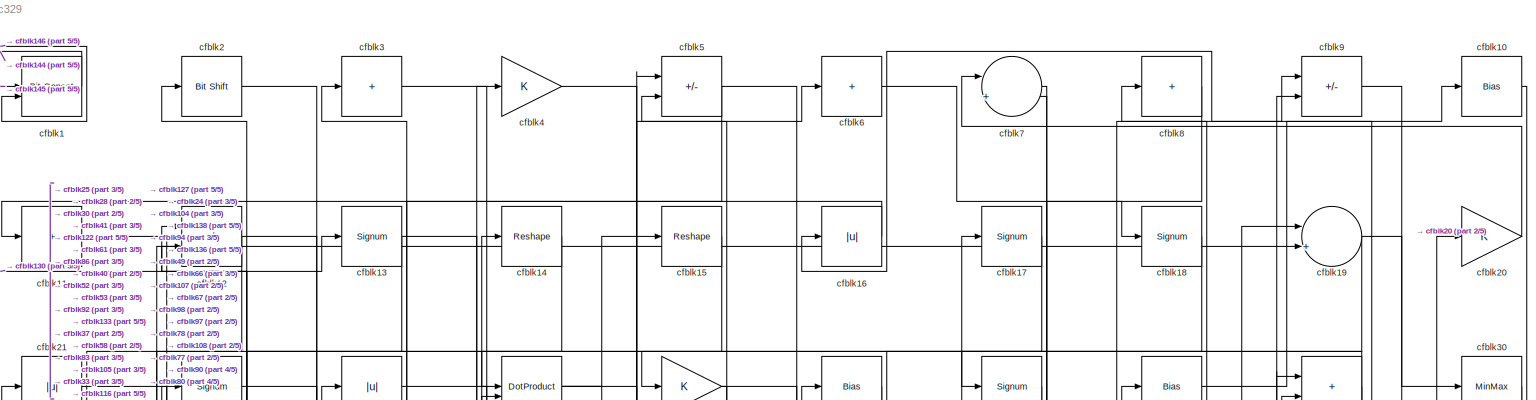
[diagram: root canvas - part 1/5, full width, top band]
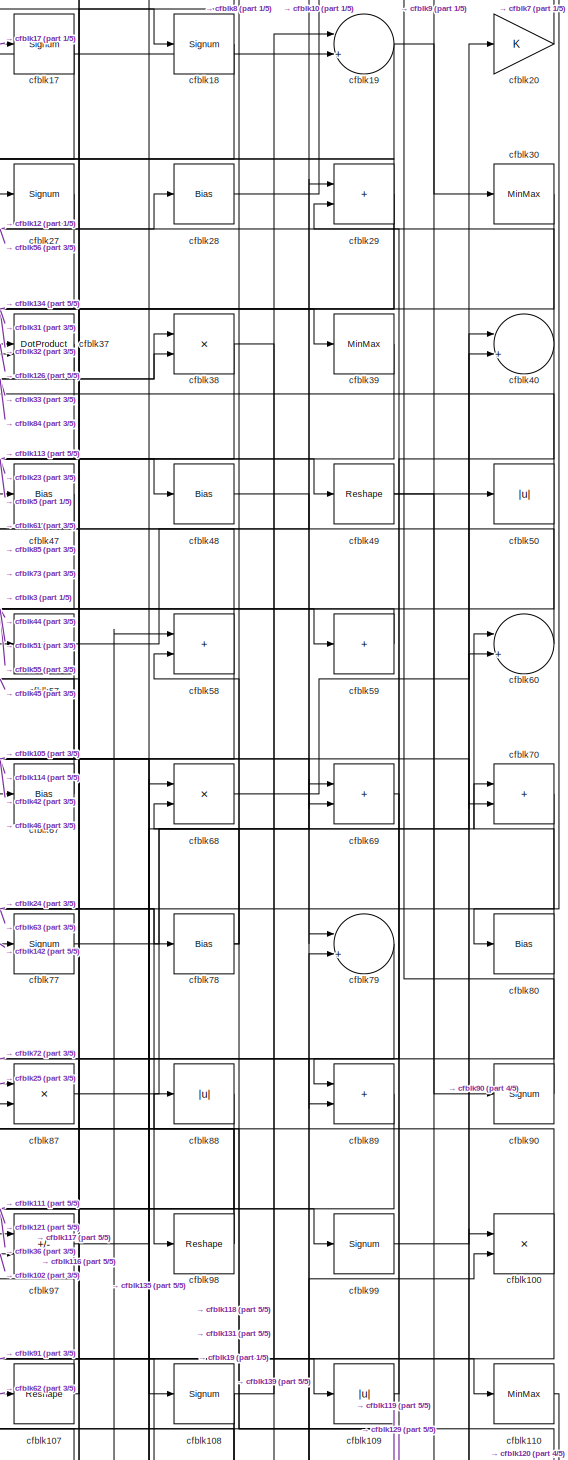
[diagram: root canvas - part 2/5, middle right region]
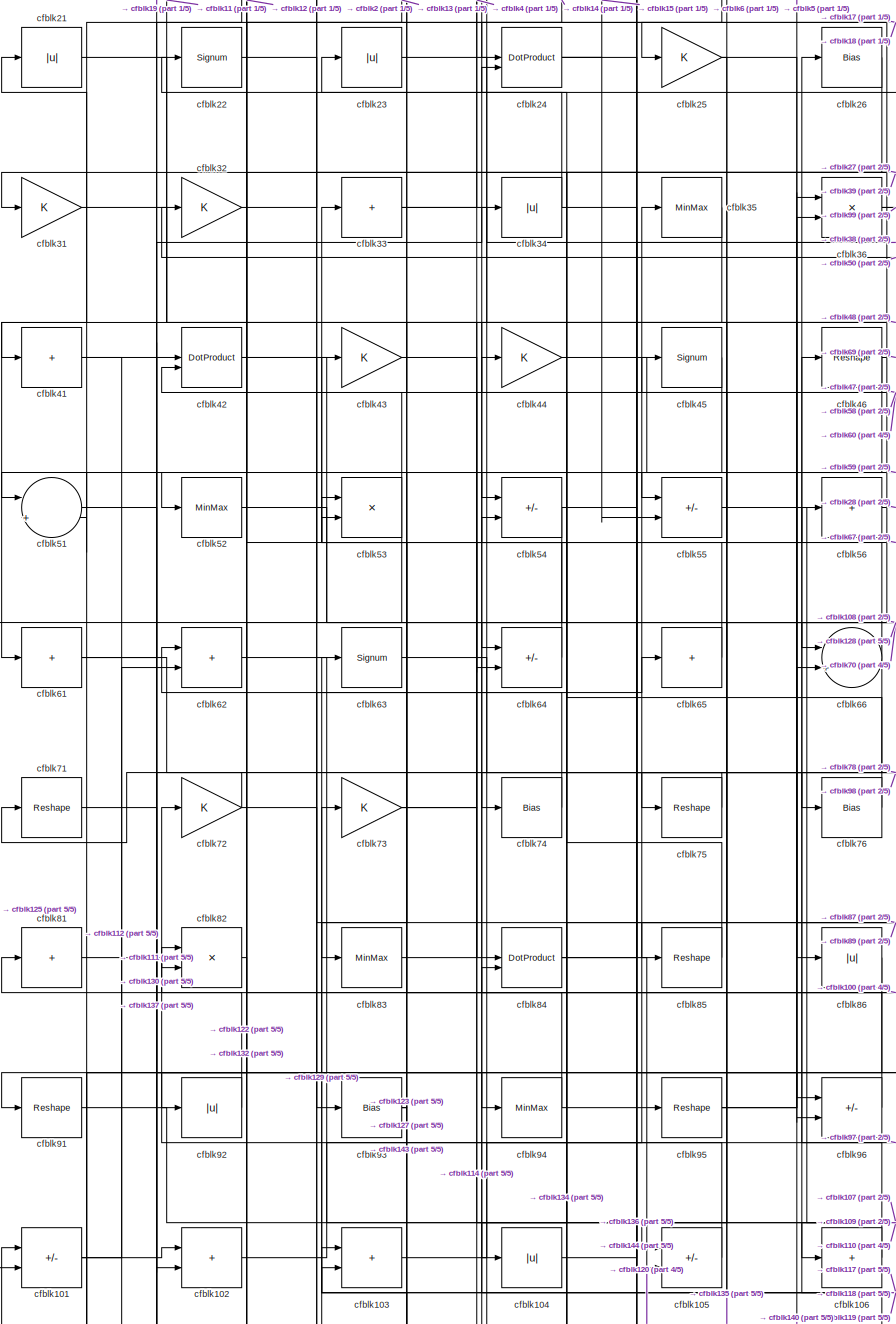
[diagram: root canvas - part 3/5, middle left region]
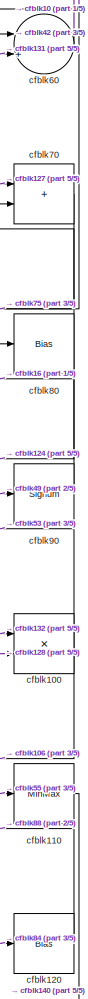
[diagram: root canvas - part 4/5, middle right region]
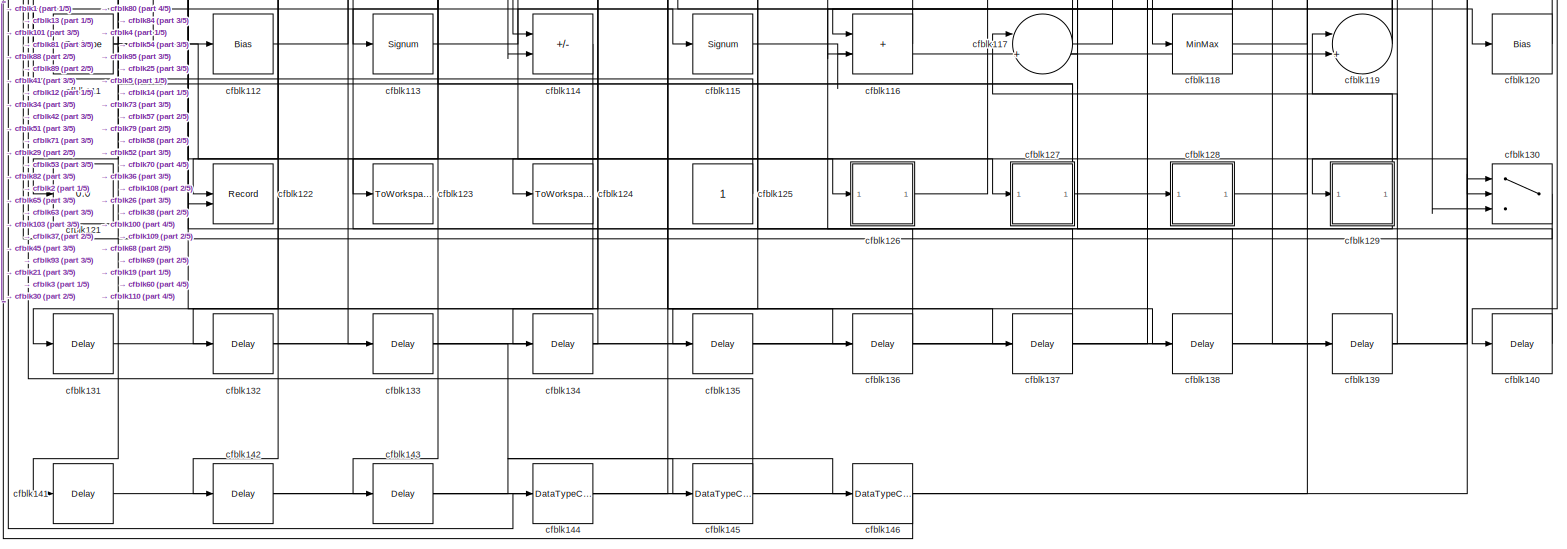
[diagram: root canvas - part 5/5, full width, bottom band]
MODEL slx_9a49e3afc329
KIND model
CONFIG AbsTol = auto
CONFIG EnableMultiTasking = off
CONFIG FixedStep = auto
CONFIG MaxStep = auto
CONFIG MinStep = auto
CONFIG RelTol = 1e-3
CONFIG SampleTimeConstraint = Unconstrained
CONFIG SolverName = VariableStepAuto
CONFIG StartTime = 0.0
CONFIG StopTime = 10.0
BLOCK [Reference] cfblk1  REF=hdlsllib/Logic and Bit
Operations/Bit Concat
  SourceBlock = hdlsllib/Logic and Bit\nOperations/Bit Concat
  SourceType = Bit Concat
BLOCK [Bias] cfblk10
  Bias = 0.0
  SaturateOnIntegerOverflow = off
BLOCK [Product] cfblk100
  Inputs = */
  RndMeth = Zero
  SaturateOnIntegerOverflow = on
BLOCK [Sum] cfblk101
  IconShape = rectangular
  Inputs = +-
BLOCK [Sum] cfblk102
  IconShape = rectangular
BLOCK [Sum] cfblk103
  IconShape = rectangular
BLOCK [Abs] cfblk104
  SaturateOnIntegerOverflow = off
BLOCK [Sum] cfblk105
  IconShape = rectangular
  Inputs = +-
BLOCK [Sum] cfblk106
  IconShape = rectangular
  Inputs = +
BLOCK [Reshape] cfblk107
BLOCK [Signum] cfblk108
BLOCK [Abs] cfblk109
  SaturateOnIntegerOverflow = off
BLOCK [Sum] cfblk11
  IconShape = rectangular
  Inputs = +
BLOCK [MinMax] cfblk110
BLOCK [Reshape] cfblk111
BLOCK [Bias] cfblk112
  Bias = 0.0
  SaturateOnIntegerOverflow = off
BLOCK [Signum] cfblk113
BLOCK [Sum] cfblk114
  IconShape = rectangular
  Inputs = +-
BLOCK [Signum] cfblk115
BLOCK [Sum] cfblk116
  IconShape = rectangular
BLOCK [Sum] cfblk117
  Inputs = |++
BLOCK [MinMax] cfblk118
BLOCK [Sum] cfblk119
  Inputs = |++
BLOCK [Sum] cfblk12
  IconShape = rectangular
  Inputs = +-
BLOCK [Bias] cfblk120
  Bias = 0.0
  SaturateOnIntegerOverflow = off
BLOCK [Display] cfblk121
  Decimation = 1
BLOCK [Record] cfblk122
  CompatibilityTag = XY
  FileSettingsInternal = {"entries":[{"content":{"excelSettings":{"content":{},"type":"Streamout.ExcelSettings"}},"type":"Streamout.FileSettingStorage","uuid":""}],"packageUris":["http:\/\/schema.mathworks.com\/mf0\/streamout_blocks\/R2020a"],"version":"1.0"}
  Layout = [1 1]
  SignalsInternal = {"entries":[{"content":{},"type":"RecordBlkView.InputSignals","uuid":""}],"packageUris":["http:\/\/schema.mathworks.com\/mf0\/streamout_blocks\/R2020a"],"version":"1.0"}
  VisualizationBindings = {"xyplotplugin":{"info":[{"series":[{"bindingParametersList":[{"parameter":"X-Axis","signalID":1531,"signalName":"cfblk82"},{"parameter":"Y-Axis","signalID":1535,"signalName":"cfblk12"}],"seriesID":53253}],"subplotID":1}]}}
  st = -1
BLOCK [ToWorkspace] cfblk123
  MaxDataPoints = inf
  SampleTime = -1
  SaveFormat = Timeseries
  VariableName = simout
BLOCK [ToWorkspace] cfblk124
  MaxDataPoints = inf
  SampleTime = -1
  SaveFormat = Timeseries
  VariableName = simout
BLOCK [Constant] cfblk125
  SampleTime = -1
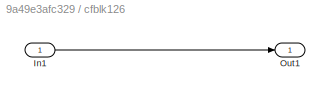
BLOCK [SubSystem] cfblk126
  LibrarySourceBlock = hdlsllib/Ports &\nSubsystems/Subsystem
BLOCK [Inport] cfblk126/In1
BLOCK [Outport] cfblk126/Out1
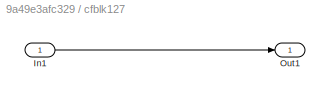
BLOCK [SubSystem] cfblk127
  LibrarySourceBlock = hdlsllib/Ports &\nSubsystems/Subsystem
BLOCK [Inport] cfblk127/In1
BLOCK [Outport] cfblk127/Out1
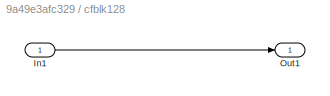
BLOCK [SubSystem] cfblk128
  LibrarySourceBlock = hdlsllib/Ports &\nSubsystems/Subsystem
BLOCK [Inport] cfblk128/In1
BLOCK [Outport] cfblk128/Out1
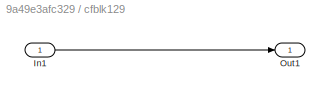
BLOCK [SubSystem] cfblk129
  LibrarySourceBlock = hdlsllib/Ports &\nSubsystems/Subsystem
BLOCK [Inport] cfblk129/In1
BLOCK [Outport] cfblk129/Out1
BLOCK [Signum] cfblk13
BLOCK [Switch] cfblk130
  InputSameDT = off
  SaturateOnIntegerOverflow = off
BLOCK [Delay] cfblk131
  InputPortMap = u0
  SampleTime = 1
BLOCK [Delay] cfblk132
  InputPortMap = u0
  SampleTime = 1
BLOCK [Delay] cfblk133
  InputPortMap = u0
  SampleTime = 1
BLOCK [Delay] cfblk134
  InputPortMap = u0
  SampleTime = 1
BLOCK [Delay] cfblk135
  InputPortMap = u0
  SampleTime = 1
BLOCK [Delay] cfblk136
  InputPortMap = u0
  SampleTime = 1
BLOCK [Delay] cfblk137
  InputPortMap = u0
  SampleTime = 1
BLOCK [Delay] cfblk138
  InputPortMap = u0
  SampleTime = 1
BLOCK [Delay] cfblk139
  InputPortMap = u0
  SampleTime = 1
BLOCK [Reshape] cfblk14
BLOCK [Delay] cfblk140
  InputPortMap = u0
  SampleTime = 1
BLOCK [Delay] cfblk141
  InputPortMap = u0
  SampleTime = 1
BLOCK [Delay] cfblk142
  InputPortMap = u0
  SampleTime = 1
BLOCK [Delay] cfblk143
  InputPortMap = u0
  SampleTime = 1
BLOCK [DataTypeConversion] cfblk144
  OutDataTypeStr = uint8
  RndMeth = Floor
  SaturateOnIntegerOverflow = off
BLOCK [DataTypeConversion] cfblk145
  OutDataTypeStr = uint8
  RndMeth = Floor
  SaturateOnIntegerOverflow = off
BLOCK [DataTypeConversion] cfblk146
  OutDataTypeStr = uint8
  RndMeth = Floor
  SaturateOnIntegerOverflow = off
BLOCK [Reshape] cfblk15
BLOCK [Abs] cfblk16
  SaturateOnIntegerOverflow = off
BLOCK [Signum] cfblk17
BLOCK [Signum] cfblk18
BLOCK [Sum] cfblk19
  Inputs = |++
BLOCK [Reference] cfblk2  REF=hdlsllib/Logic and Bit
Operations/Bit Shift
  SourceBlock = hdlsllib/Logic and Bit\nOperations/Bit Shift
  SourceType = Bit Shift
BLOCK [Gain] cfblk20
BLOCK [Abs] cfblk21
  SaturateOnIntegerOverflow = off
BLOCK [Signum] cfblk22
BLOCK [Abs] cfblk23
  SaturateOnIntegerOverflow = off
BLOCK [DotProduct] cfblk24
  OutDataTypeStr = Inherit: Inherit via internal rule
BLOCK [Gain] cfblk25
BLOCK [Bias] cfblk26
  Bias = 0.0
  SaturateOnIntegerOverflow = off
BLOCK [Signum] cfblk27
BLOCK [Bias] cfblk28
  Bias = 0.0
  SaturateOnIntegerOverflow = off
BLOCK [Sum] cfblk29
  IconShape = rectangular
BLOCK [Sum] cfblk3
  IconShape = rectangular
  Inputs = +
BLOCK [MinMax] cfblk30
BLOCK [Gain] cfblk31
BLOCK [Gain] cfblk32
BLOCK [Sum] cfblk33
  IconShape = rectangular
  Inputs = +
BLOCK [Abs] cfblk34
  SaturateOnIntegerOverflow = off
BLOCK [MinMax] cfblk35
BLOCK [Product] cfblk36
  Inputs = */
  RndMeth = Zero
  SaturateOnIntegerOverflow = on
BLOCK [DotProduct] cfblk37
  OutDataTypeStr = Inherit: Inherit via internal rule
BLOCK [Product] cfblk38
  Inputs = */
  RndMeth = Zero
  SaturateOnIntegerOverflow = on
BLOCK [MinMax] cfblk39
BLOCK [Gain] cfblk4
BLOCK [Sum] cfblk40
  Inputs = |++
BLOCK [Sum] cfblk41
  IconShape = rectangular
  Inputs = +
BLOCK [DotProduct] cfblk42
  OutDataTypeStr = Inherit: Inherit via internal rule
BLOCK [Gain] cfblk43
BLOCK [Gain] cfblk44
BLOCK [Signum] cfblk45
BLOCK [Reshape] cfblk46
BLOCK [Bias] cfblk47
  Bias = 0.0
  SaturateOnIntegerOverflow = off
BLOCK [Bias] cfblk48
  Bias = 0.0
  SaturateOnIntegerOverflow = off
BLOCK [Reshape] cfblk49
BLOCK [Sum] cfblk5
  IconShape = rectangular
  Inputs = +-
BLOCK [Abs] cfblk50
  SaturateOnIntegerOverflow = off
BLOCK [Sum] cfblk51
  Inputs = |++
BLOCK [MinMax] cfblk52
BLOCK [Product] cfblk53
  Inputs = */
  RndMeth = Zero
  SaturateOnIntegerOverflow = on
BLOCK [Sum] cfblk54
  IconShape = rectangular
  Inputs = +-
BLOCK [Sum] cfblk55
  IconShape = rectangular
  Inputs = +-
BLOCK [Sum] cfblk56
  IconShape = rectangular
  Inputs = +
BLOCK [Sum] cfblk57
  IconShape = rectangular
  Inputs = +
BLOCK [Sum] cfblk58
  IconShape = rectangular
BLOCK [Sum] cfblk59
  IconShape = rectangular
  Inputs = +
BLOCK [Sum] cfblk6
  IconShape = rectangular
  Inputs = +
BLOCK [Sum] cfblk60
  Inputs = |++
BLOCK [Sum] cfblk61
  IconShape = rectangular
  Inputs = +
BLOCK [Sum] cfblk62
  IconShape = rectangular
BLOCK [Signum] cfblk63
BLOCK [Sum] cfblk64
  IconShape = rectangular
  Inputs = +-
BLOCK [Sum] cfblk65
  IconShape = rectangular
  Inputs = +
BLOCK [Sum] cfblk66
  Inputs = |++
BLOCK [Bias] cfblk67
  Bias = 0.0
  SaturateOnIntegerOverflow = off
BLOCK [Product] cfblk68
  Inputs = */
  RndMeth = Zero
  SaturateOnIntegerOverflow = on
BLOCK [Sum] cfblk69
  IconShape = rectangular
BLOCK [Sum] cfblk7
  Inputs = |++
BLOCK [Sum] cfblk70
  IconShape = rectangular
BLOCK [Reshape] cfblk71
BLOCK [Gain] cfblk72
BLOCK [Gain] cfblk73
BLOCK [Bias] cfblk74
  Bias = 0.0
  SaturateOnIntegerOverflow = off
BLOCK [Reshape] cfblk75
BLOCK [Bias] cfblk76
  Bias = 0.0
  SaturateOnIntegerOverflow = off
BLOCK [Signum] cfblk77
BLOCK [Bias] cfblk78
  Bias = 0.0
  SaturateOnIntegerOverflow = off
BLOCK [Sum] cfblk79
  Inputs = |++
BLOCK [Sum] cfblk8
  IconShape = rectangular
  Inputs = +
BLOCK [Bias] cfblk80
  Bias = 0.0
  SaturateOnIntegerOverflow = off
BLOCK [Sum] cfblk81
  IconShape = rectangular
  Inputs = +
BLOCK [Product] cfblk82
  Inputs = */
  RndMeth = Zero
  SaturateOnIntegerOverflow = on
BLOCK [MinMax] cfblk83
BLOCK [DotProduct] cfblk84
  OutDataTypeStr = Inherit: Inherit via internal rule
BLOCK [Reshape] cfblk85
BLOCK [Abs] cfblk86
  SaturateOnIntegerOverflow = off
BLOCK [Product] cfblk87
  Inputs = */
  RndMeth = Zero
  SaturateOnIntegerOverflow = on
BLOCK [Abs] cfblk88
  SaturateOnIntegerOverflow = off
BLOCK [Sum] cfblk89
  IconShape = rectangular
BLOCK [Sum] cfblk9
  IconShape = rectangular
  Inputs = +-
BLOCK [Signum] cfblk90
BLOCK [Reshape] cfblk91
BLOCK [Abs] cfblk92
  SaturateOnIntegerOverflow = off
BLOCK [Bias] cfblk93
  Bias = 0.0
  SaturateOnIntegerOverflow = off
BLOCK [MinMax] cfblk94
BLOCK [Reshape] cfblk95
BLOCK [Sum] cfblk96
  IconShape = rectangular
  Inputs = +-
BLOCK [Sum] cfblk97
  IconShape = rectangular
  Inputs = +-
BLOCK [Reshape] cfblk98
BLOCK [Signum] cfblk99
NET cfblk100:1 -> cfblk106:1, cfblk53:2
NET cfblk101:1 -> cfblk102:1, cfblk62:2
LINE cfblk102:1 -> cfblk97:2
LINE cfblk103:1 -> cfblk35:1
LINE cfblk104:1 -> cfblk5:1
LINE cfblk105:1 -> cfblk82:1
LINE cfblk106:1 -> cfblk46:1
NET cfblk107:1 -> cfblk17:1, cfblk87:2
NET cfblk108:1 -> cfblk117:2, cfblk131:1, cfblk19:1
NET cfblk109:1 -> cfblk116:2, cfblk29:2
LINE cfblk10:1 -> cfblk80:1
LINE cfblk110:1 -> cfblk140:1
NET cfblk111:1 -> cfblk126:1, cfblk34:1
LINE cfblk112:1 -> cfblk65:1
LINE cfblk113:1 -> cfblk115:1
LINE cfblk114:1 -> cfblk141:1
LINE cfblk115:1 -> cfblk119:2
LINE cfblk116:1 -> cfblk14:1
NET cfblk117:1 -> cfblk58:1, cfblk73:1
NET cfblk118:1 -> cfblk26:1, cfblk79:2
NET cfblk119:1 -> cfblk103:1, cfblk68:2
LINE cfblk11:1 -> cfblk86:1
LINE cfblk120:1 -> cfblk88:1
LINE cfblk125:1 -> cfblk101:1
LINE cfblk126/In1:1 -> cfblk126/Out1:1
LINE cfblk126:1 -> cfblk37:1
LINE cfblk127/In1:1 -> cfblk127/Out1:1
NET cfblk127:1 -> cfblk103:2, cfblk70:1, cfblk81:1
LINE cfblk128/In1:1 -> cfblk128/Out1:1
LINE cfblk128:1 -> cfblk100:2
LINE cfblk129/In1:1 -> cfblk129/Out1:1
NET cfblk129:1 -> cfblk57:1, cfblk63:1
NET cfblk12:1 -> cfblk122:2, cfblk37:2
LINE cfblk130:1 -> cfblk13:1
LINE cfblk131:1 -> cfblk60:2
LINE cfblk132:1 -> cfblk100:1
LINE cfblk133:1 -> cfblk145:1
LINE cfblk134:1 -> cfblk84:2
LINE cfblk135:1 -> cfblk68:1
LINE cfblk136:1 -> cfblk5:2
LINE cfblk137:1 -> cfblk42:1
LINE cfblk138:1 -> cfblk117:1
LINE cfblk139:1 -> cfblk119:1
NET cfblk13:1 -> cfblk105:2, cfblk52:1
LINE cfblk140:1 -> cfblk36:1
LINE cfblk141:1 -> cfblk130:1
LINE cfblk142:1 -> cfblk69:1
LINE cfblk143:1 -> cfblk146:1
LINE cfblk144:1 -> cfblk95:1
LINE cfblk145:1 -> cfblk1:1
LINE cfblk146:1 -> cfblk1:2
LINE cfblk14:1 -> cfblk41:1
LINE cfblk15:1 -> cfblk92:1
LINE cfblk16:1 -> cfblk11:1
LINE cfblk17:1 -> cfblk25:1
LINE cfblk18:1 -> cfblk66:1
NET cfblk19:1 -> cfblk130:3, cfblk24:1
LINE cfblk1:1 -> cfblk144:1
LINE cfblk20:1 -> cfblk7:1
LINE cfblk21:1 -> cfblk114:2
LINE cfblk22:1 -> cfblk93:1
LINE cfblk23:1 -> cfblk48:1
NET cfblk24:1 -> cfblk15:1, cfblk55:2, cfblk78:1
NET cfblk25:1 -> cfblk135:1, cfblk87:1
LINE cfblk26:1 -> cfblk104:1
LINE cfblk27:1 -> cfblk31:1
LINE cfblk28:1 -> cfblk10:1
NET cfblk29:1 -> cfblk142:1, cfblk27:1, cfblk77:1
LINE cfblk2:1 -> cfblk133:1
LINE cfblk30:1 -> cfblk134:1
LINE cfblk31:1 -> cfblk96:1
LINE cfblk32:1 -> cfblk39:1
NET cfblk33:1 -> cfblk38:2, cfblk4:1
NET cfblk34:1 -> cfblk23:1, cfblk96:2
LINE cfblk35:1 -> cfblk64:1
NET cfblk36:1 -> cfblk118:1, cfblk99:1
LINE cfblk37:1 -> cfblk113:1
NET cfblk38:1 -> cfblk139:1, cfblk85:1
LINE cfblk39:1 -> cfblk61:1
LINE cfblk3:1 -> cfblk127:1
NET cfblk40:1 -> cfblk12:1, cfblk89:1
NET cfblk41:1 -> cfblk112:1, cfblk94:1
NET cfblk42:1 -> cfblk108:1, cfblk70:2
LINE cfblk43:1 -> cfblk64:2
LINE cfblk44:1 -> cfblk59:1
LINE cfblk45:1 -> cfblk123:1
NET cfblk46:1 -> cfblk54:1, cfblk69:2
LINE cfblk47:1 -> cfblk51:1
LINE cfblk48:1 -> cfblk79:1
NET cfblk49:1 -> cfblk40:2, cfblk90:1
LINE cfblk4:1 -> cfblk138:1
NET cfblk50:1 -> cfblk32:1, cfblk51:2
LINE cfblk51:1 -> cfblk130:2
LINE cfblk52:1 -> cfblk128:1
NET cfblk53:1 -> cfblk132:1, cfblk2:1
NET cfblk54:1 -> cfblk101:2, cfblk136:1
LINE cfblk55:1 -> cfblk110:1
LINE cfblk56:1 -> cfblk28:1
NET cfblk57:1 -> cfblk114:1, cfblk29:1
NET cfblk58:1 -> cfblk105:1, cfblk3:1
LINE cfblk59:1 -> cfblk55:1
NET cfblk5:1 -> cfblk49:1, cfblk83:1
LINE cfblk60:1 -> cfblk42:2
NET cfblk61:1 -> cfblk19:2, cfblk76:1
LINE cfblk62:1 -> cfblk107:1
LINE cfblk63:1 -> cfblk98:1
LINE cfblk64:1 -> cfblk33:1
LINE cfblk65:1 -> cfblk43:1
NET cfblk66:1 -> cfblk102:2, cfblk12:2
LINE cfblk67:1 -> cfblk45:1
LINE cfblk68:1 -> cfblk50:1
LINE cfblk69:1 -> cfblk129:1
LINE cfblk6:1 -> cfblk18:1
LINE cfblk70:1 -> cfblk75:1
LINE cfblk71:1 -> cfblk137:1
NET cfblk72:1 -> cfblk71:1, cfblk89:2
NET cfblk73:1 -> cfblk47:1, cfblk84:1
LINE cfblk74:1 -> cfblk62:1
LINE cfblk75:1 -> cfblk74:1
LINE cfblk76:1 -> cfblk44:1
LINE cfblk77:1 -> cfblk9:2
NET cfblk78:1 -> cfblk58:2, cfblk8:1
LINE cfblk79:1 -> cfblk116:1
LINE cfblk7:1 -> cfblk97:1
NET cfblk80:1 -> cfblk124:1, cfblk60:1
LINE cfblk81:1 -> cfblk82:2
LINE cfblk82:1 -> cfblk122:1
LINE cfblk83:1 -> cfblk56:1
NET cfblk84:1 -> cfblk120:1, cfblk38:1
LINE cfblk85:1 -> cfblk54:2
LINE cfblk86:1 -> cfblk91:1
LINE cfblk87:1 -> cfblk20:1
LINE cfblk88:1 -> cfblk111:1
LINE cfblk89:1 -> cfblk121:1
LINE cfblk8:1 -> cfblk67:1
LINE cfblk90:1 -> cfblk16:1
LINE cfblk91:1 -> cfblk109:1
LINE cfblk92:1 -> cfblk72:1
NET cfblk93:1 -> cfblk143:1, cfblk53:1
NET cfblk94:1 -> cfblk21:1, cfblk6:1
NET cfblk95:1 -> cfblk36:2, cfblk66:2
LINE cfblk96:1 -> cfblk22:1
LINE cfblk97:1 -> cfblk9:1
NET cfblk98:1 -> cfblk24:2, cfblk7:2
LINE cfblk99:1 -> cfblk40:1
LINE cfblk9:1 -> cfblk30:1
note: NET lines group one-source signal fan-out (src -> all destinations, sorted); 1:1 wires keep LINE
